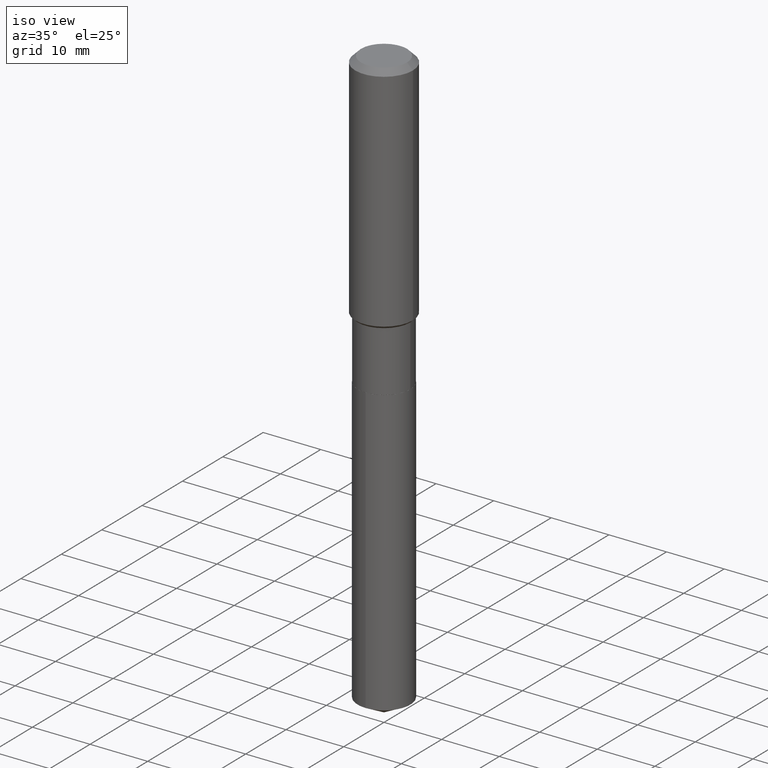
[diagram: clean part render]
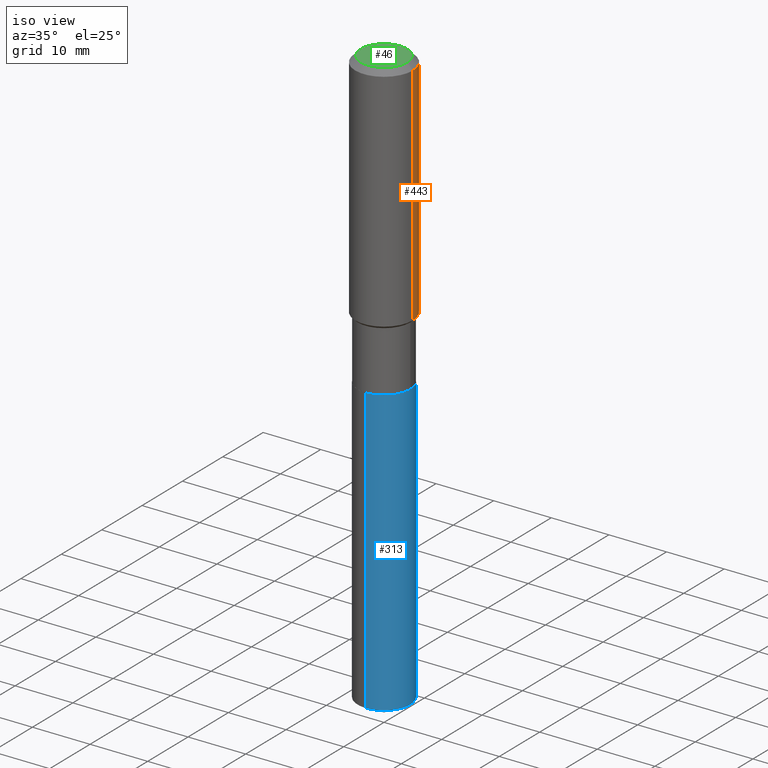
[diagram: same view with three faces highlighted in distinct colors, each labeled with its STEP entity id]
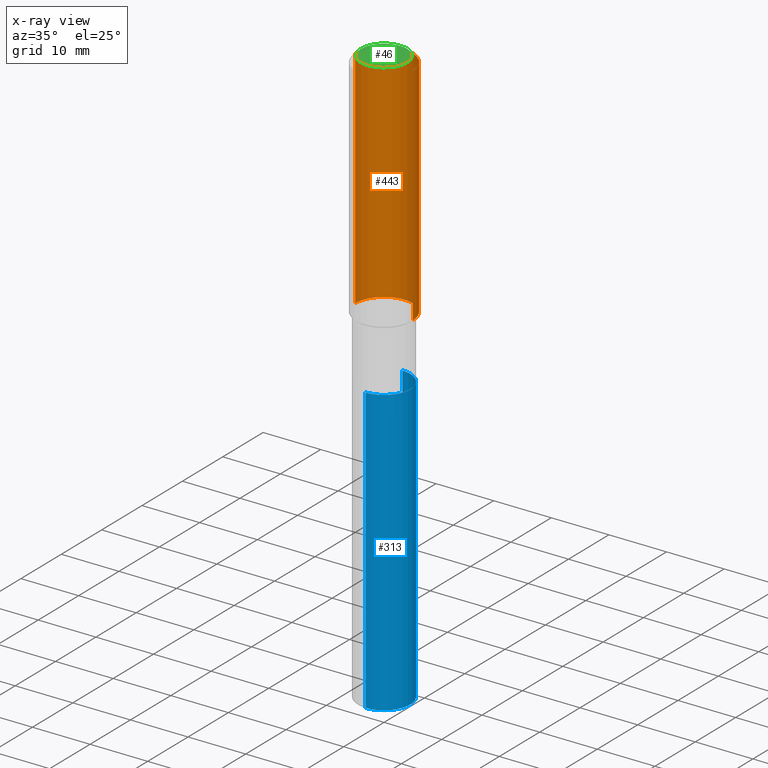
[diagram: x-ray of the same camera — body ghosted, the three highlighted faces saturated]
A machine part, iso view with three faces highlighted in distinct colors.
The next image is the same camera in x-ray (body ghosted, the three faces saturated) — at least one of them is partly hidden behind the body in this view.
Their STEP definitions:

[orange] entity #443 — the highlighted cylindrical surface (edge-blend (fillet) strip) has radius 5 mm, axis along (-0, 0, 1).
#16 = CARTESIAN_POINT ( 'NONE',  ( 3.868609377944575708E-29, -5.523348903982912472E-15, -1.581949999999999523 ) ) ;
#22 = LINE ( 'NONE', #174, #335 ) ;
#39 = VERTEX_POINT ( 'NONE', #240 ) ;
#43 = ORIENTED_EDGE ( 'NONE', *, *, #424, .T. ) ;
#49 = VERTEX_POINT ( 'NONE', #474 ) ;
#64 = DIRECTION ( 'NONE',  ( -2.445468806185136597E-29, 3.491481338843145583E-15, 1.000000000000000000 ) ) ;
#101 = EDGE_CURVE ( 'NONE', #49, #380, #461, .T. ) ;
#106 = CARTESIAN_POINT ( 'NONE',  ( 0.1968500000000001082, -1.374596203102542397E-15, 9.598753983154305062E-30 ) ) ;
#134 = DIRECTION ( 'NONE',  ( 1.000000000000000000, -6.982962677686266711E-15, 4.876176775795935793E-29 ) ) ;
#174 = CARTESIAN_POINT ( 'NONE',  ( -0.1968500000000001082, 1.398703375343757985E-15, -9.682923725166787881E-30 ) ) ;
#213 = DIRECTION ( 'NONE',  ( 1.000000000000000000, -6.982962677686265922E-15, 0.000000000000000000 ) ) ;
#214 = ORIENTED_EDGE ( 'NONE', *, *, #227, .F. ) ;
#226 = CARTESIAN_POINT ( 'NONE',  ( -0.1968500000000002192, -4.124645528639153107E-15, -1.581949999999999523 ) ) ;
#227 = EDGE_CURVE ( 'NONE', #39, #49, #260, .T. ) ;
#229 = VERTEX_POINT ( 'NONE', #226 ) ;
#240 = CARTESIAN_POINT ( 'NONE',  ( 0.1968500000000002192, -6.897945107085455658E-15, -1.581949999999999523 ) ) ;
#248 = CYLINDRICAL_SURFACE ( 'NONE', #273, 0.1968500000000001082 ) ;
#253 = AXIS2_PLACEMENT_3D ( 'NONE', #16, #396, #213 ) ;
#260 = LINE ( 'NONE', #106, #470 ) ;
#272 = AXIS2_PLACEMENT_3D ( 'NONE', #403, #64, #484 ) ;
#273 = AXIS2_PLACEMENT_3D ( 'NONE', #352, #435, #134 ) ;
#306 = CIRCLE ( 'NONE', #253, 0.1968500000000002192 ) ;
#310 = ORIENTED_EDGE ( 'NONE', *, *, #101, .F. ) ;
#319 = CARTESIAN_POINT ( 'NONE',  ( -0.1968500000000000250, -1.431700886802825647E-15, -0.03937000000000029365 ) ) ;
#335 = VECTOR ( 'NONE', #475, 39.37007874015748143 ) ;
#352 = CARTESIAN_POINT ( 'NONE',  ( 0.000000000000000000, 0.000000000000000000, 0.000000000000000000 ) ) ;
#359 = EDGE_LOOP ( 'NONE', ( #425, #43, #310, #214 ) ) ;
#380 = VERTEX_POINT ( 'NONE', #319 ) ;
#396 = DIRECTION ( 'NONE',  ( -2.445468806185136597E-29, 3.491481338843145583E-15, 1.000000000000000000 ) ) ;
#398 = FACE_OUTER_BOUND ( 'NONE', #359, .T. ) ;
#403 = CARTESIAN_POINT ( 'NONE',  ( 9.627810689950954155E-31, -1.374596203102556547E-16, -0.03937000000000029365 ) ) ;
#414 = DIRECTION ( 'NONE',  ( -2.445468806185136877E-29, 3.491481338843145188E-15, 1.000000000000000000 ) ) ;
#424 = EDGE_CURVE ( 'NONE', #229, #380, #22, .T. ) ;
#425 = ORIENTED_EDGE ( 'NONE', *, *, #471, .T. ) ;
#435 = DIRECTION ( 'NONE',  ( -2.445468806185136597E-29, 3.491481338843145583E-15, 1.000000000000000000 ) ) ;
#443 = ADVANCED_FACE ( 'NONE', ( #398 ), #248, .T. ) ;
#461 = CIRCLE ( 'NONE', #272, 0.1968500000000000250 ) ;
#470 = VECTOR ( 'NONE', #414, 39.37007874015748143 ) ;
#471 = EDGE_CURVE ( 'NONE', #39, #229, #306, .T. ) ;
#474 = CARTESIAN_POINT ( 'NONE',  ( 0.1968500000000000250, -1.512055823412797189E-15, -0.03937000000000029365 ) ) ;
#475 = DIRECTION ( 'NONE',  ( -2.445468806185136877E-29, 3.491481338843145188E-15, 1.000000000000000000 ) ) ;
#484 = DIRECTION ( 'NONE',  ( 1.000000000000000000, -6.982962677686265922E-15, 0.000000000000000000 ) ) ;

[blue] entity #313 — the highlighted cylindrical surface (edge-blend (fillet) strip) has radius 4.5644 mm, axis along (-0, 0, 1).
#3 = AXIS2_PLACEMENT_3D ( 'NONE', #290, #67, #219 ) ;
#11 = FACE_OUTER_BOUND ( 'NONE', #125, .T. ) ;
#21 = EDGE_CURVE ( 'NONE', #205, #348, #305, .T. ) ;
#24 = CARTESIAN_POINT ( 'NONE',  ( 1.276845296160997054E-15, 0.1796999999999929765, -2.012399999999999967 ) ) ;
#57 = AXIS2_PLACEMENT_3D ( 'NONE', #202, #347, #278 ) ;
#60 = DIRECTION ( 'NONE',  ( -6.982962677686265922E-15, -1.000000000000000000, 3.040454083098790380E-15 ) ) ;
#61 = DIRECTION ( 'NONE',  ( -2.445537497902415833E-29, 3.491382968394311693E-15, 1.000000000000000000 ) ) ;
#67 = DIRECTION ( 'NONE',  ( -2.445537497902415833E-29, 3.491382968394312088E-15, 1.000000000000000000 ) ) ;
#84 = ORIENTED_EDGE ( 'NONE', *, *, #21, .F. ) ;
#95 = CARTESIAN_POINT ( 'NONE',  ( 1.276845296160949131E-15, 0.1796999999999929765, -2.012399999999999967 ) ) ;
#96 = AXIS2_PLACEMENT_3D ( 'NONE', #476, #97, #60 ) ;
#97 = DIRECTION ( 'NONE',  ( -2.445537497902415833E-29, 3.491382968394312088E-15, 1.000000000000000000 ) ) ;
#107 = CIRCLE ( 'NONE', #3, 0.1796999999999999986 ) ;
#121 = ORIENTED_EDGE ( 'NONE', *, *, #157, .T. ) ;
#125 = EDGE_LOOP ( 'NONE', ( #121, #211, #84, #479 ) ) ;
#139 = VECTOR ( 'NONE', #256, 39.37007874015748143 ) ;
#157 = EDGE_CURVE ( 'NONE', #459, #390, #107, .T. ) ;
#185 = EDGE_CURVE ( 'NONE', #459, #205, #298, .T. ) ;
#195 = CARTESIAN_POINT ( 'NONE',  ( -1.254838393180172821E-15, -0.1797000000000070208, -2.012399999999999078 ) ) ;
#202 = CARTESIAN_POINT ( 'NONE',  ( 4.921261425566967720E-29, -7.026257046287944454E-15, -2.012399999999999523 ) ) ;
#205 = VERTEX_POINT ( 'NONE', #451 ) ;
#211 = ORIENTED_EDGE ( 'NONE', *, *, #457, .T. ) ;
#219 = DIRECTION ( 'NONE',  ( -6.982962677686265922E-15, -1.000000000000000000, 3.040454083098790380E-15 ) ) ;
#237 = CARTESIAN_POINT ( 'NONE',  ( 1.276845296160996857E-15, 0.1796999999999861763, -3.959451815130432539 ) ) ;
#243 = CARTESIAN_POINT ( 'NONE',  ( -1.254838393180125292E-15, -0.1797000000000138209, -3.959451815130431207 ) ) ;
#256 = DIRECTION ( 'NONE',  ( -2.445537497902415833E-29, 3.491382968394311693E-15, 1.000000000000000000 ) ) ;
#262 = VECTOR ( 'NONE', #61, 39.37007874015748143 ) ;
#278 = DIRECTION ( 'NONE',  ( -6.982962677686265922E-15, -1.000000000000000000, 3.040454083098790380E-15 ) ) ;
#290 = CARTESIAN_POINT ( 'NONE',  ( 9.682849649827402638E-29, -1.382416059221556642E-14, -3.959451815130432095 ) ) ;
#298 = LINE ( 'NONE', #195, #139 ) ;
#305 = CIRCLE ( 'NONE', #96, 0.1796999999999999986 ) ;
#313 = ADVANCED_FACE ( 'NONE', ( #11 ), #385, .T. ) ;
#326 = LINE ( 'NONE', #95, #262 ) ;
#347 = DIRECTION ( 'NONE',  ( -2.445537497902415833E-29, 3.491382968394312088E-15, 1.000000000000000000 ) ) ;
#348 = VERTEX_POINT ( 'NONE', #24 ) ;
#385 = CYLINDRICAL_SURFACE ( 'NONE', #57, 0.1796999999999999986 ) ;
#390 = VERTEX_POINT ( 'NONE', #237 ) ;
#451 = CARTESIAN_POINT ( 'NONE',  ( -1.254838393180172821E-15, -0.1797000000000070208, -2.012399999999999078 ) ) ;
#457 = EDGE_CURVE ( 'NONE', #390, #348, #326, .T. ) ;
#459 = VERTEX_POINT ( 'NONE', #243 ) ;
#476 = CARTESIAN_POINT ( 'NONE',  ( 4.921261425566967720E-29, -7.026257046287944454E-15, -2.012399999999999523 ) ) ;
#479 = ORIENTED_EDGE ( 'NONE', *, *, #185, .F. ) ;

[green] entity #46 — the highlighted planar face has unit normal (0, -0, -1).
#5 = CARTESIAN_POINT ( 'NONE',  ( -0.1574800000000000089, 1.168406772637159618E-15, 3.855188123707939751E-18 ) ) ;
#23 = DIRECTION ( 'NONE',  ( -1.000000000000000000, 6.982962677686265922E-15, -4.876176775795935793E-29 ) ) ;
#46 = ADVANCED_FACE ( 'NONE', ( #357 ), #103, .F. ) ;
#103 = PLANE ( 'NONE',  #370 ) ;
#123 = CIRCLE ( 'NONE', #315, 0.1574800000000000089 ) ;
#124 = DIRECTION ( 'NONE',  ( 1.000000000000000000, -6.982962677686265922E-15, 4.876223630392693006E-29 ) ) ;
#136 = CARTESIAN_POINT ( 'NONE',  ( 0.1574800000000000089, -1.284169937930321189E-15, 3.855188123724205385E-18 ) ) ;
#175 = ORIENTED_EDGE ( 'NONE', *, *, #466, .T. ) ;
#208 = ORIENTED_EDGE ( 'NONE', *, *, #300, .T. ) ;
#216 = DIRECTION ( 'NONE',  ( 2.438088387897960049E-29, -3.491481338843145188E-15, -1.000000000000000000 ) ) ;
#235 = AXIS2_PLACEMENT_3D ( 'NONE', #433, #311, #468 ) ;
#245 = CARTESIAN_POINT ( 'NONE',  ( -4.713871149261283817E-47, 6.730158695841841775E-33, 1.927594061857935365E-18 ) ) ;
#268 = VERTEX_POINT ( 'NONE', #5 ) ;
#291 = CIRCLE ( 'NONE', #235, 0.1574800000000000089 ) ;
#300 = EDGE_CURVE ( 'NONE', #268, #428, #123, .T. ) ;
#311 = DIRECTION ( 'NONE',  ( -2.445468806185136597E-29, 3.491481338843145583E-15, 1.000000000000000000 ) ) ;
#315 = AXIS2_PLACEMENT_3D ( 'NONE', #343, #458, #124 ) ;
#343 = CARTESIAN_POINT ( 'NONE',  ( -9.427742298522567634E-47, 1.346031739168368355E-32, 3.855188123715870730E-18 ) ) ;
#357 = FACE_OUTER_BOUND ( 'NONE', #436, .T. ) ;
#370 = AXIS2_PLACEMENT_3D ( 'NONE', #245, #216, #23 ) ;
#428 = VERTEX_POINT ( 'NONE', #136 ) ;
#433 = CARTESIAN_POINT ( 'NONE',  ( -9.427742298522567634E-47, 1.346031739168368355E-32, 3.855188123715870730E-18 ) ) ;
#436 = EDGE_LOOP ( 'NONE', ( #208, #175 ) ) ;
#458 = DIRECTION ( 'NONE',  ( -2.445468806185136597E-29, 3.491481338843145583E-15, 1.000000000000000000 ) ) ;
#466 = EDGE_CURVE ( 'NONE', #428, #268, #291, .T. ) ;
#468 = DIRECTION ( 'NONE',  ( 1.000000000000000000, -6.982962677686265922E-15, 4.876223630392693006E-29 ) ) ;